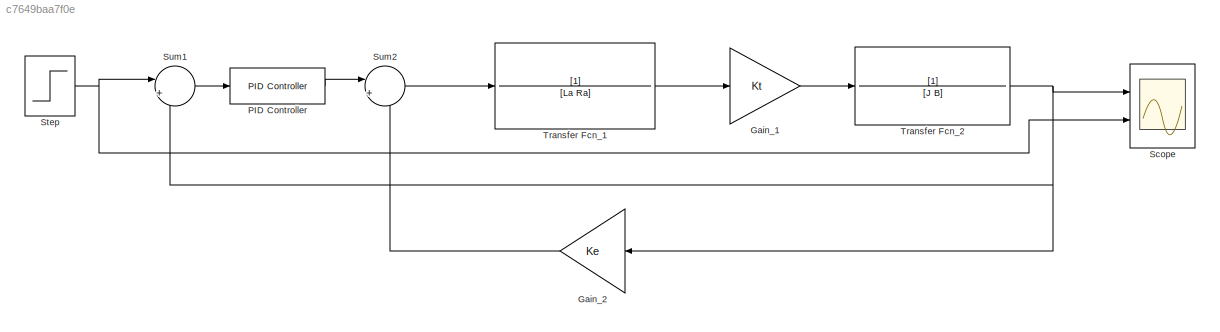
MODEL slx_c7649baa7f0e
KIND model
CONFIG AbsTol = auto
CONFIG EnableMultiTasking = off
CONFIG FixedStep = auto
CONFIG MaxStep = auto
CONFIG MinStep = auto
CONFIG RelTol = 1e-3
CONFIG SampleTimeConstraint = Unconstrained
CONFIG Solver = VariableStepAuto
CONFIG SolverName = VariableStepAuto
CONFIG StartTime = 0.0
CONFIG StopTime = 1
BLOCK [Gain] Gain_1
  Gain = Kt
  NameLocation = top
BLOCK [Gain] Gain_2
  Gain = Ke
BLOCK [Reference] PID Controller  REF=simulink/Continuous/PID Controller
  NameLocation = top
  Ports = [1, 1]
  SourceBlock = simulink/Continuous/PID Controller
  SourceProductBaseCode = SL
  SourceType = PID 1dof
BLOCK [Scope] Scope
  Floating = off
  NameLocation = top
  NumInputPorts = 2
  Ports = [2]
  ScopeSpecificationString = Simulink.scopes.TimeScopeBlockCfg('CurrentConfiguration', extmgr.ConfigurationSet(extmgr.Configuration('Core','General UI',true,'FigureColor',[1 1 1]),extmgr.Configuration('Core','Source UI',true),extmgr.Configuration('Sources','WiredSimulink',true),extmgr.Configuration('Visuals','Time Domain',true,'SerializedDisplays',{struct('MinYLimReal','-0.13546','MaxYLimReal','1.2191','YLabelReal','','MinYLi...<+2405ch>
BLOCK [Step] Step
  NameLocation = top
  SampleTime = 0
  Time = 0
BLOCK [Sum] Sum1
  Inputs = |+-
  NameLocation = top
  Ports = [2, 1]
BLOCK [Sum] Sum2
  Inputs = |+-
  NameLocation = top
  Ports = [2, 1]
BLOCK [TransferFcn] Transfer Fcn_1
  Denominator = [La Ra]
  NameLocation = top
BLOCK [TransferFcn] Transfer Fcn_2
  Denominator = [J B]
  NameLocation = top
LINE Gain_1:1 -> Transfer Fcn_2:1
LINE Gain_2:1 -> Sum2:2
LINE PID Controller:1 -> Sum2:1
NET Step:1 -> Scope:2, Sum1:1
LINE Sum1:1 -> PID Controller:1
LINE Sum2:1 -> Transfer Fcn_1:1
LINE Transfer Fcn_1:1 -> Gain_1:1
NET Transfer Fcn_2:1 -> Gain_2:1, Scope:1, Sum1:2
note: NET lines group one-source signal fan-out (src -> all destinations, sorted); 1:1 wires keep LINE
